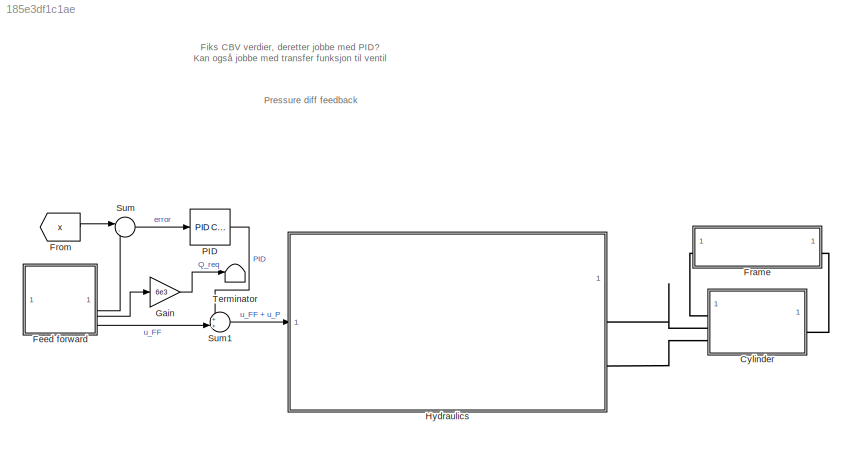
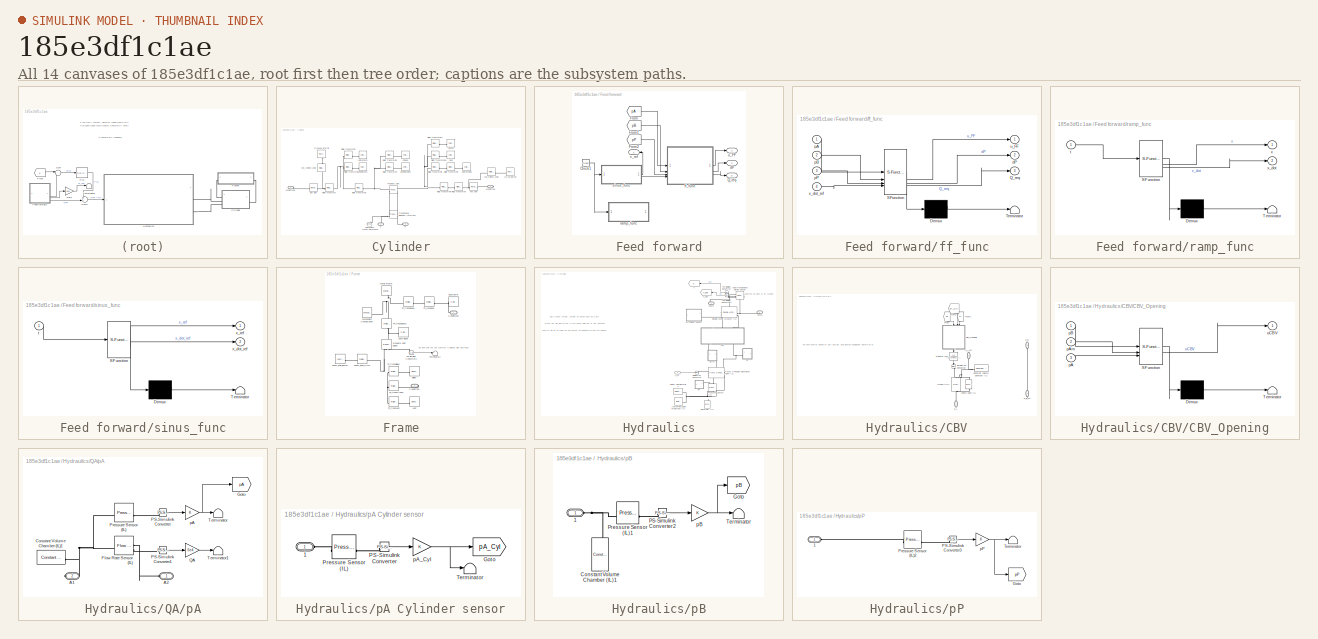
[diagram: thumbnail index - all 14 canvases of the model, root first then tree order]
MODEL slx_185e3df1c1ae
KIND model
CONFIG AbsTol = auto
CONFIG EnableMultiTasking = off
CONFIG FixedStep = auto
CONFIG MaxStep = auto
CONFIG MinStep = auto
CONFIG RelTol = 1e-3
CONFIG SampleTimeConstraint = Unconstrained
CONFIG SolverName = VariableStepAuto
CONFIG StartTime = 0.0
CONFIG StopTime = 40
WORKSPACE source: MATLAB code (in-file)
WORKSPACE code: clear;
WORKSPACE rho = 875
WORKSPACE beta = 1000
WORKSPACE pP = 10e6  (= 10000000)
WORKSPACE dp0 = 20e5  (= 2000000)
WORKSPACE Q0 = 18/6e4  (= 0.0003)
WORKSPACE Cd = 0.55
WORKSPACE AdMax_SI = Q0/(Cd*(2/rho*dp0)^0.5)  (= 8.06738152241e-06)
WORKSPACE AdMax = AdMax_SI*1e6  (= 8.06738152241)
WORKSPACE u_01 = 0.8/7  (= 0.114285714286)
WORKSPACE alpha = 5
WORKSPACE pCr_A = 297.7
WORKSPACE dp_open_A = 150.5
WORKSPACE d = 65
WORKSPACE dr = 35
WORKSPACE A = pi*d^2/4  (= 3318.30724035)
WORKSPACE Ar = pi*dr^2/4  (= 962.112750162)
WORKSPACE Aa = A - Ar  (= 2356.19449019)
WORKSPACE h = 500
WORKSPACE L0 = 272
WORKSPACE dx = 0
WORKSPACE L = h + L0 + dx  (= 772)
WORKSPACE m = 75*4 + 20 + 90  (= 410)
WORKSPACE g = 9.81
WORKSPACE MG = m*g  (= 4022.1)
WORKSPACE x_Init = 50
WORKSPACE Cx = 427
WORKSPACE Cz = -1057
WORKSPACE theta_Init = 73.04- 90  (= -16.96)
WORKSPACE thetaDot_Init = 0
WORKSPACE L1 = 3680
WORKSPACE B1 = 100
WORKSPACE H1 = 150
WORKSPACE t1 = 6
WORKSPACE revBasePinDia = 60
WORKSPACE revBasePinLength = 185.5
WORKSPACE rEar = 35
WORKSPACE tEar = 30
WORKSPACE earToCylTop = 52.45
WORKSPACE earToCylBot = 40.62
WORKSPACE cylDia = 75
WORKSPACE cylLength = 682
WORKSPACE rodLength = 565.26
WORKSPACE rodDia = 35
WORKSPACE rodToCyl = 132
WORKSPACE revCylPinDia = 25
WORKSPACE revCylPinLength = 84
WORKSPACE rPiston = 65/2  (= 32.5)
WORKSPACE tPiston = 40
WORKSPACE abx = 564.99
WORKSPACE aby = 133
WORKSPACE L2 = 210
WORKSPACE B2 = 700
WORKSPACE H2 = 300
WORKSPACE dY_PL_Beam = 75
WORKSPACE beam_mass = 415.740  (= 415.74)
WORKSPACE beam_COM = [3013.15, 61.48, 0.00]
WORKSPACE cyl_house_mass = 10.46699
WORKSPACE cyl_house_COM = [260.99, 0.16, 0.00]
WORKSPACE cyl_rod_mass = 4.81658
WORKSPACE cyl_rod_COM = [-292.43, 0.00, 0.00]
WORKSPACE beam_MOI = [17.5673, 453.1288, 442.0275]
WORKSPACE beam_POI = [13.7279, 0.00000, 0.00000]
WORKSPACE cyl_house_MOI = [0.00969, 0.50582, 0.50623]
WORKSPACE cyl_house_POI = [-0.00039, 0.00000, 0.00000]
WORKSPACE cyl_rod_MOI = [0.00142, 0.20919, 0.20942]
WORKSPACE cyl_rod_POI = [0.00000, 0.00000, 0.00000]
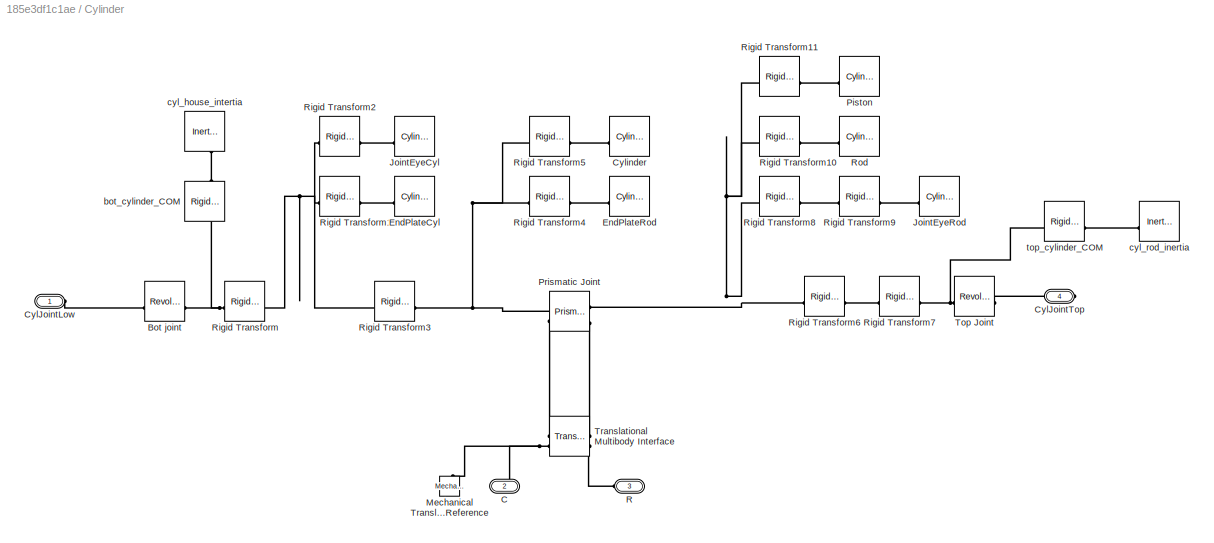
BLOCK [SubSystem] Cylinder
BLOCK [Reference] Cylinder/Bot joint  REF=sm_lib/Joints/Revolute Joint
  SourceBlock = sm_lib/Joints/Revolute Joint
  SourceType = Revolute Joint
BLOCK [PMIOPort] Cylinder/C
  Port = 2
  Side = Left
BLOCK [PMIOPort] Cylinder/CylJointLow
  Side = Left
BLOCK [PMIOPort] Cylinder/CylJointTop
  Port = 4
  Side = Right
BLOCK [Reference] Cylinder/Cylinder  REF=sm_lib/Body Elements/Cylindrical Solid
  SourceBlock = sm_lib/Body Elements/Cylindrical Solid
  SourceType = Cylindrical Solid
BLOCK [Reference] Cylinder/EndPlateCyl  REF=sm_lib/Body Elements/Cylindrical Solid
  Commented = on
  SourceBlock = sm_lib/Body Elements/Cylindrical Solid
  SourceType = Cylindrical Solid
BLOCK [Reference] Cylinder/EndPlateRod  REF=sm_lib/Body Elements/Cylindrical Solid
  Commented = on
  SourceBlock = sm_lib/Body Elements/Cylindrical Solid
  SourceType = Cylindrical Solid
BLOCK [Reference] Cylinder/JointEyeCyl  REF=sm_lib/Body Elements/Cylindrical Solid
  SourceBlock = sm_lib/Body Elements/Cylindrical Solid
  SourceType = Cylindrical Solid
BLOCK [Reference] Cylinder/JointEyeRod  REF=sm_lib/Body Elements/Cylindrical Solid
  SourceBlock = sm_lib/Body Elements/Cylindrical Solid
  SourceType = Cylindrical Solid
BLOCK [Reference] Cylinder/Mechanical Translational Reference  REF=fl_lib/Mechanical/Translational
Elements/Mechanical
Translational
Reference
  NameLocation = right
  SourceBlock = fl_lib/Mechanical/Translational\nElements/Mechanical\nTranslational\nReference
  SourceType = Mechanical\nTranslational\nReference
BLOCK [Reference] Cylinder/Piston  REF=sm_lib/Body Elements/Cylindrical Solid
  SourceBlock = sm_lib/Body Elements/Cylindrical Solid
  SourceType = Cylindrical Solid
BLOCK [Reference] Cylinder/Prismatic Joint  REF=sm_lib/Joints/Prismatic
Joint
  SourceBlock = sm_lib/Joints/Prismatic\nJoint
  SourceType = Prismatic\nJoint
BLOCK [PMIOPort] Cylinder/R
  Port = 3
  Side = Left
BLOCK [Reference] Cylinder/Rigid Transform  REF=sm_lib/Frames and
Transforms/Rigid
Transform
  SourceBlock = sm_lib/Frames and\nTransforms/Rigid\nTransform
  SourceType = Rigid\nTransform
BLOCK [Reference] Cylinder/Rigid Transform1  REF=sm_lib/Frames and
Transforms/Rigid
Transform
  Commented = on
  SourceBlock = sm_lib/Frames and\nTransforms/Rigid\nTransform
  SourceType = Rigid\nTransform
BLOCK [Reference] Cylinder/Rigid Transform10  REF=sm_lib/Frames and
Transforms/Rigid
Transform
  SourceBlock = sm_lib/Frames and\nTransforms/Rigid\nTransform
  SourceType = Rigid\nTransform
BLOCK [Reference] Cylinder/Rigid Transform11  REF=sm_lib/Frames and
Transforms/Rigid
Transform
  SourceBlock = sm_lib/Frames and\nTransforms/Rigid\nTransform
  SourceType = Rigid\nTransform
BLOCK [Reference] Cylinder/Rigid Transform2  REF=sm_lib/Frames and
Transforms/Rigid
Transform
  SourceBlock = sm_lib/Frames and\nTransforms/Rigid\nTransform
  SourceType = Rigid\nTransform
BLOCK [Reference] Cylinder/Rigid Transform3  REF=sm_lib/Frames and
Transforms/Rigid
Transform
  SourceBlock = sm_lib/Frames and\nTransforms/Rigid\nTransform
  SourceType = Rigid\nTransform
BLOCK [Reference] Cylinder/Rigid Transform4  REF=sm_lib/Frames and
Transforms/Rigid
Transform
  Commented = on
  SourceBlock = sm_lib/Frames and\nTransforms/Rigid\nTransform
  SourceType = Rigid\nTransform
BLOCK [Reference] Cylinder/Rigid Transform5  REF=sm_lib/Frames and
Transforms/Rigid
Transform
  SourceBlock = sm_lib/Frames and\nTransforms/Rigid\nTransform
  SourceType = Rigid\nTransform
BLOCK [Reference] Cylinder/Rigid Transform6  REF=sm_lib/Frames and
Transforms/Rigid
Transform
  SourceBlock = sm_lib/Frames and\nTransforms/Rigid\nTransform
  SourceType = Rigid\nTransform
BLOCK [Reference] Cylinder/Rigid Transform7  REF=sm_lib/Frames and
Transforms/Rigid
Transform
  SourceBlock = sm_lib/Frames and\nTransforms/Rigid\nTransform
  SourceType = Rigid\nTransform
BLOCK [Reference] Cylinder/Rigid Transform8  REF=sm_lib/Frames and
Transforms/Rigid
Transform
  SourceBlock = sm_lib/Frames and\nTransforms/Rigid\nTransform
  SourceType = Rigid\nTransform
BLOCK [Reference] Cylinder/Rigid Transform9  REF=sm_lib/Frames and
Transforms/Rigid
Transform
  SourceBlock = sm_lib/Frames and\nTransforms/Rigid\nTransform
  SourceType = Rigid\nTransform
BLOCK [Reference] Cylinder/Rod  REF=sm_lib/Body Elements/Cylindrical Solid
  SourceBlock = sm_lib/Body Elements/Cylindrical Solid
  SourceType = Cylindrical Solid
BLOCK [Reference] Cylinder/Top Joint  REF=sm_lib/Joints/Revolute Joint
  SourceBlock = sm_lib/Joints/Revolute Joint
  SourceType = Revolute Joint
BLOCK [Reference] Cylinder/Translational Multibody Interface  REF=fl_lib/Mechanical/Multibody Interfaces/Translational
Multibody Interface
  SourceBlock = fl_lib/Mechanical/Multibody Interfaces/Translational\nMultibody Interface
  SourceType = Translational\nMultibody Interface
BLOCK [Reference] Cylinder/bot_cylinder_COM  REF=sm_lib/Frames and
Transforms/Rigid
Transform
  NameLocation = left
  SourceBlock = sm_lib/Frames and\nTransforms/Rigid\nTransform
  SourceType = Rigid\nTransform
BLOCK [Reference] Cylinder/cyl_house_intertia  REF=sm_lib/Body Elements/Inertia
  NameLocation = left
  SourceBlock = sm_lib/Body Elements/Inertia
  SourceType = Inertia
BLOCK [Reference] Cylinder/cyl_rod_inertia  REF=sm_lib/Body Elements/Inertia
  NameLocation = top
  SourceBlock = sm_lib/Body Elements/Inertia
  SourceType = Inertia
BLOCK [Reference] Cylinder/top_cylinder_COM  REF=sm_lib/Frames and
Transforms/Rigid
Transform
  SourceBlock = sm_lib/Frames and\nTransforms/Rigid\nTransform
  SourceType = Rigid\nTransform
BLOCK [SubSystem] Feed forward
BLOCK [Clock] Feed forward/Clock1
BLOCK [From] Feed forward/From
  GotoTag = pA
  TagVisibility = global
BLOCK [From] Feed forward/From1
  GotoTag = pB
  TagVisibility = global
BLOCK [From] Feed forward/From2
  GotoTag = pP
  TagVisibility = global
BLOCK [Outport] Feed forward/Q_req
  Port = 3
BLOCK [Outport] Feed forward/dP
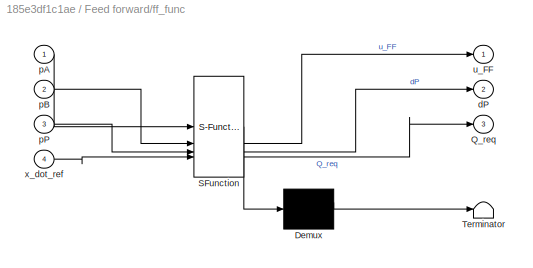
BLOCK [SubSystem] Feed forward/ff_func
  ErrorFcn = Stateflow.Translate.translate
  PermitHierarchicalResolution = ExplicitOnly
  SFBlockType = MATLAB Function
  TreatAsAtomicUnit = on
BLOCK [Demux] Feed forward/ff_func/ Demux 
  Outputs = 1
BLOCK [S-Function] Feed forward/ff_func/ SFunction 
  EnableBusSupport = off
  FunctionName = sf_sfun
  Parameters = A,Aa,Q0,dp0,u_01
  PortCounts = [4 4]
  SFcnIsStateOwnerBlock = off
  SFunctionDeploymentMode = off
  Tag = Stateflow S-Function 3
BLOCK [Terminator] Feed forward/ff_func/ Terminator 
BLOCK [Outport] Feed forward/ff_func/Q_req
  Port = 3
BLOCK [Outport] Feed forward/ff_func/dP
  Port = 2
BLOCK [Inport] Feed forward/ff_func/pA
BLOCK [Inport] Feed forward/ff_func/pB
  Port = 2
BLOCK [Inport] Feed forward/ff_func/pP
  Port = 3
BLOCK [Outport] Feed forward/ff_func/u_FF
BLOCK [Inport] Feed forward/ff_func/x_dot_ref
  Port = 4
BLOCK [SubSystem] Feed forward/ramp_func
  Commented = on
  ErrorFcn = Stateflow.Translate.translate
  PermitHierarchicalResolution = ExplicitOnly
  SFBlockType = MATLAB Function
  TreatAsAtomicUnit = on
BLOCK [Demux] Feed forward/ramp_func/ Demux 
  Outputs = 1
BLOCK [S-Function] Feed forward/ramp_func/ SFunction 
  EnableBusSupport = off
  FunctionName = sf_sfun
  PortCounts = [1 3]
  SFcnIsStateOwnerBlock = off
  SFunctionDeploymentMode = off
  Tag = Stateflow S-Function 4
BLOCK [Terminator] Feed forward/ramp_func/ Terminator 
BLOCK [Inport] Feed forward/ramp_func/t
BLOCK [Outport] Feed forward/ramp_func/x
BLOCK [Outport] Feed forward/ramp_func/x_dot
  Port = 2
BLOCK [SubSystem] Feed forward/sinus_func
  ErrorFcn = Stateflow.Translate.translate
  PermitHierarchicalResolution = ExplicitOnly
  SFBlockType = MATLAB Function
  TreatAsAtomicUnit = on
BLOCK [Demux] Feed forward/sinus_func/ Demux 
  Outputs = 1
BLOCK [S-Function] Feed forward/sinus_func/ SFunction 
  EnableBusSupport = off
  FunctionName = sf_sfun
  PortCounts = [1 3]
  SFcnIsStateOwnerBlock = off
  SFunctionDeploymentMode = off
  Tag = Stateflow S-Function 2
BLOCK [Terminator] Feed forward/sinus_func/ Terminator 
BLOCK [Inport] Feed forward/sinus_func/t
BLOCK [Outport] Feed forward/sinus_func/x_dot_ref
  Port = 2
BLOCK [Outport] Feed forward/sinus_func/x_ref
BLOCK [Outport] Feed forward/u_FF
  Port = 4
BLOCK [Outport] Feed forward/x_ref
  Port = 2
BLOCK [SubSystem] Frame
BLOCK [Reference] Frame/Bjelke  REF=sm_lib/Body Elements/Brick Solid
  SourceBlock = sm_lib/Body Elements/Brick Solid
  SourceType = Brick Solid
BLOCK [PMIOPort] Frame/CylJointLow
  Side = Left
BLOCK [PMIOPort] Frame/CylJointTop
  Port = 2
  Side = Right
BLOCK [Reference] Frame/Last  REF=sm_lib/Body Elements/Brick Solid
  SourceBlock = sm_lib/Body Elements/Brick Solid
  SourceType = Brick Solid
BLOCK [Reference] Frame/Mechanism Configuration  REF=sm_lib/Utilities/Mechanism
Configuration
  SourceBlock = sm_lib/Utilities/Mechanism\nConfiguration
  SourceType = Mechanism\nConfiguration
BLOCK [Reference] Frame/PS-Simulink Converter2  REF=nesl_utility/PS-Simulink
Converter
  SourceBlock = nesl_utility/PS-Simulink\nConverter
  SourceType = PS-Simulink\nConverter
BLOCK [Reference] Frame/Revolute Joint global  REF=sm_lib/Joints/Revolute Joint
  NameLocation = left
  SourceBlock = sm_lib/Joints/Revolute Joint
  SourceType = Revolute Joint
BLOCK [Reference] Frame/TF_rotBaseL  REF=sm_lib/Frames and
Transforms/Rigid
Transform
  SourceBlock = sm_lib/Frames and\nTransforms/Rigid\nTransform
  SourceType = Rigid\nTransform
BLOCK [Reference] Frame/TF_transBaseG  REF=sm_lib/Frames and
Transforms/Rigid
Transform
  NameLocation = left
  SourceBlock = sm_lib/Frames and\nTransforms/Rigid\nTransform
  SourceType = Rigid\nTransform
BLOCK [Reference] Frame/TF_transBaseL  REF=sm_lib/Frames and
Transforms/Rigid
Transform
  SourceBlock = sm_lib/Frames and\nTransforms/Rigid\nTransform
  SourceType = Rigid\nTransform
BLOCK [Reference] Frame/TF_transBjelke  REF=sm_lib/Frames and
Transforms/Rigid
Transform
  SourceBlock = sm_lib/Frames and\nTransforms/Rigid\nTransform
  SourceType = Rigid\nTransform
BLOCK [Reference] Frame/TF_transCylTop  REF=sm_lib/Frames and
Transforms/Rigid
Transform
  SourceBlock = sm_lib/Frames and\nTransforms/Rigid\nTransform
  SourceType = Rigid\nTransform
BLOCK [Reference] Frame/TF_transLast  REF=sm_lib/Frames and
Transforms/Rigid
Transform
  SourceBlock = sm_lib/Frames and\nTransforms/Rigid\nTransform
  SourceType = Rigid\nTransform
BLOCK [Terminator] Frame/Terminator2
BLOCK [Reference] Frame/World Frame  REF=sm_lib/Frames and
Transforms/World Frame
  NameLocation = left
  SourceBlock = sm_lib/Frames and\nTransforms/World Frame
  SourceType = World Frame
BLOCK [Reference] Frame/base global  REF=sm_lib/Body Elements/Cylindrical Solid
  SourceBlock = sm_lib/Body Elements/Cylindrical Solid
  SourceType = Cylindrical Solid
BLOCK [Reference] Frame/base lower  REF=sm_lib/Body Elements/Cylindrical Solid
  SourceBlock = sm_lib/Body Elements/Cylindrical Solid
  SourceType = Cylindrical Solid
BLOCK [Reference] Frame/beam_load_COM  REF=sm_lib/Frames and
Transforms/Rigid
Transform
  SourceBlock = sm_lib/Frames and\nTransforms/Rigid\nTransform
  SourceType = Rigid\nTransform
BLOCK [Reference] Frame/beam_load_inertia  REF=sm_lib/Body Elements/Inertia
  SourceBlock = sm_lib/Body Elements/Inertia
  SourceType = Inertia
BLOCK [From] From
  GotoTag = x
  TagVisibility = global
BLOCK [Gain] Gain
  Gain = 6e3
BLOCK [SubSystem] Hydraulics
BLOCK [Reference] Hydraulics/4-Way 3-Position Directional Valve (IL)  REF=SimscapeFluids_lib/Isothermal Liquid/Valves & Orifices/Directional Control
Valves/4-Way 3-Position
Directional Valve
(IL)
  SourceBlock = SimscapeFluids_lib/Isothermal Liquid/Valves & Orifices/Directional Control\nValves/4-Way 3-Position\nDirectional Valve\n(IL)
  SourceType = 4-Way 3-Position\nDirectional Valve\n(IL)
BLOCK [SubSystem] Hydraulics/CBV
BLOCK [SubSystem] Hydraulics/CBV/CBV_Opening
  ErrorFcn = Stateflow.Translate.translate
  NameLocation = right
  PermitHierarchicalResolution = ExplicitOnly
  SFBlockType = MATLAB Function
  TreatAsAtomicUnit = on
BLOCK [Demux] Hydraulics/CBV/CBV_Opening/ Demux 
  Outputs = 1
BLOCK [S-Function] Hydraulics/CBV/CBV_Opening/ SFunction 
  EnableBusSupport = off
  FunctionName = sf_sfun
  Parameters = alpha,dp_open_A,pCr_A
  PortCounts = [3 2]
  SFcnIsStateOwnerBlock = off
  SFunctionDeploymentMode = off
  Tag = Stateflow S-Function 1
BLOCK [Terminator] Hydraulics/CBV/CBV_Opening/ Terminator 
BLOCK [Inport] Hydraulics/CBV/CBV_Opening/pA
  Port = 3
BLOCK [Inport] Hydraulics/CBV/CBV_Opening/pAm
  Port = 2
BLOCK [Inport] Hydraulics/CBV/CBV_Opening/pB
BLOCK [Outport] Hydraulics/CBV/CBV_Opening/uCBV
BLOCK [Reference] Hydraulics/CBV/Check Valve (IL)  REF=SimscapeFluids_lib/Isothermal Liquid/Valves & Orifices/Directional Control
Valves/Check Valve (IL)
  NameLocation = right
  SourceBlock = SimscapeFluids_lib/Isothermal Liquid/Valves & Orifices/Directional Control\nValves/Check Valve (IL)
  SourceType = Check Valve (IL)
BLOCK [Reference] Hydraulics/CBV/Constant Volume Chamber (IL)  REF=fl_lib/Isothermal Liquid/Elements/Constant Volume
Chamber (IL)
  SourceBlock = fl_lib/Isothermal Liquid/Elements/Constant Volume\nChamber (IL)
  SourceType = Constant Volume\nChamber (IL)
BLOCK [From] Hydraulics/CBV/From
  GotoTag = pB
  NameLocation = left
  TagVisibility = global
BLOCK [From] Hydraulics/CBV/From1
  GotoTag = pA
  NameLocation = left
  TagVisibility = global
BLOCK [From] Hydraulics/CBV/From2
  GotoTag = pA_Cyl
  NameLocation = left
  TagVisibility = global
BLOCK [Reference] Hydraulics/CBV/Orifice (IL)1  REF=SimscapeFluids_lib/Isothermal Liquid/Valves & Orifices/Orifices/Orifice (IL)
  NameLocation = left
  SourceBlock = SimscapeFluids_lib/Isothermal Liquid/Valves & Orifices/Orifices/Orifice (IL)
  SourceType = Orifice (IL)
BLOCK [Reference] Hydraulics/CBV/Simulink-PS Converter  REF=nesl_utility/Simulink-PS
Converter
  NameLocation = left
  SourceBlock = nesl_utility/Simulink-PS\nConverter
  SourceType = Simulink-PS\nConverter
BLOCK [TransferFcn] Hydraulics/CBV/Transfer Fcn
  Denominator = [1/(2*pi*0.5) 1]
  NameLocation = left
BLOCK [PMIOPort] Hydraulics/CBV/p_A
  NameLocation = right
  Side = Left
BLOCK [PMIOPort] Hydraulics/CBV/p_A_Cyl
  NameLocation = right
  Port = 3
  Side = Right
BLOCK [PMIOPort] Hydraulics/CBV/p_B
  NameLocation = left
  Port = 2
  Side = Left
BLOCK [PMIOPort] Hydraulics/CBV/p_B_Cyl
  NameLocation = right
  Port = 4
  Side = Right
BLOCK [PMIOPort] Hydraulics/Conn1
  Side = Right
BLOCK [PMIOPort] Hydraulics/Conn3
  Port = 2
  Side = Right
BLOCK [Reference] Hydraulics/Double-Acting Actuator (IL)  REF=SimscapeFluids_lib/Isothermal Liquid/Actuators/Double-Acting
Actuator (IL)
  SourceBlock = SimscapeFluids_lib/Isothermal Liquid/Actuators/Double-Acting\nActuator (IL)
  SourceType = Double-Acting\nActuator (IL)
BLOCK [Reference] Hydraulics/Ideal Translational Motion Sensor  REF=fl_lib/Mechanical/Mechanical Sensors/Ideal Translational
Motion Sensor
  NameLocation = top
  SourceBlock = fl_lib/Mechanical/Mechanical Sensors/Ideal Translational\nMotion Sensor
  SourceType = Ideal Translational\nMotion Sensor
BLOCK [Reference] Hydraulics/Isothermal Liquid Properties (IL)  REF=fl_lib/Isothermal Liquid/Utilities/Isothermal Liquid
Properties (IL)
  SourceBlock = fl_lib/Isothermal Liquid/Utilities/Isothermal Liquid\nProperties (IL)
  SourceType = Isothermal Liquid\nProperties (IL)
BLOCK [Reference] Hydraulics/PS-Simulink Converter  REF=nesl_utility/PS-Simulink
Converter
  NameLocation = top
  SourceBlock = nesl_utility/PS-Simulink\nConverter
  SourceType = PS-Simulink\nConverter
BLOCK [Reference] Hydraulics/PS-Simulink Converter1  REF=nesl_utility/PS-Simulink
Converter
  NameLocation = top
  SourceBlock = nesl_utility/PS-Simulink\nConverter
  SourceType = PS-Simulink\nConverter
BLOCK [Reference] Hydraulics/Pressure Source (IL)  REF=fl_lib/Isothermal Liquid/Sources/Pressure Source (IL)
  NameLocation = right
  SourceBlock = fl_lib/Isothermal Liquid/Sources/Pressure Source (IL)
  SourceType = Pressure Source (IL)
BLOCK [SubSystem] Hydraulics/QA//pA
  PortSchema = {"entries":[{"content":{"sides":[{"content":{},"type":"ConnectorPlacement.EquallySpacedRectSide","uuid":"528edc0f-4a4d-4637-aeac-ce7d4705c794"},{"content":{"side":"RIGHT"},"type":"ConnectorPlacement.EquallySpacedRectSide","uuid":"1212f0bf-cd1d-49c9-8d64-2c2fa0f26d5e"},{"content":{"connectorIds":["LConn1"],"side":"TOP"},"type":"ConnectorPlacement.EquallySpacedRectSide","uuid":"19f63e16-fedb-4531-94...<+354ch>
BLOCK [PMIOPort] Hydraulics/QA//pA/A1
  Port = 2
  Side = Right
BLOCK [PMIOPort] Hydraulics/QA//pA/A2
  Side = Left
BLOCK [Reference] Hydraulics/QA//pA/Constant Volume Chamber (IL)1  REF=fl_lib/Isothermal Liquid/Elements/Constant Volume
Chamber (IL)
  SourceBlock = fl_lib/Isothermal Liquid/Elements/Constant Volume\nChamber (IL)
  SourceType = Constant Volume\nChamber (IL)
BLOCK [Reference] Hydraulics/QA//pA/Flow Rate Sensor (IL)  REF=fl_lib/Isothermal Liquid/Sensors/Flow Rate Sensor
(IL)
  SourceBlock = fl_lib/Isothermal Liquid/Sensors/Flow Rate Sensor\n(IL)
  SourceType = Flow Rate Sensor\n(IL)
BLOCK [Goto] Hydraulics/QA//pA/Goto
  GotoTag = pA
  TagVisibility = global
BLOCK [Reference] Hydraulics/QA//pA/PS-Simulink Converter  REF=nesl_utility/PS-Simulink
Converter
  SourceBlock = nesl_utility/PS-Simulink\nConverter
  SourceType = PS-Simulink\nConverter
BLOCK [Reference] Hydraulics/QA//pA/PS-Simulink Converter1  REF=nesl_utility/PS-Simulink
Converter
  SourceBlock = nesl_utility/PS-Simulink\nConverter
  SourceType = PS-Simulink\nConverter
BLOCK [Reference] Hydraulics/QA//pA/Pressure Sensor (IL)  REF=fl_lib/Isothermal Liquid/Sensors/Pressure Sensor (IL)
  SourceBlock = fl_lib/Isothermal Liquid/Sensors/Pressure Sensor (IL)
  SourceType = Pressure Sensor (IL)
BLOCK [Gain] Hydraulics/QA//pA/QA
  Gain = 6e4
BLOCK [Terminator] Hydraulics/QA//pA/Terminator
BLOCK [Terminator] Hydraulics/QA//pA/Terminator1
BLOCK [Gain] Hydraulics/QA//pA/pA
BLOCK [Reference] Hydraulics/Reservoir (IL)  REF=fl_lib/Isothermal Liquid/Elements/Reservoir (IL)
  NameLocation = right
  SourceBlock = fl_lib/Isothermal Liquid/Elements/Reservoir (IL)
  SourceType = Reservoir (IL)
BLOCK [Reference] Hydraulics/Simulink-PS Converter  REF=nesl_utility/Simulink-PS
Converter
  SourceBlock = nesl_utility/Simulink-PS\nConverter
  SourceType = Simulink-PS\nConverter
BLOCK [Reference] Hydraulics/Solver Configuration  REF=nesl_utility/Solver
Configuration
  SourceBlock = nesl_utility/Solver\nConfiguration
  SourceType = Solver\nConfiguration
BLOCK [Inport] Hydraulics/U_FF
BLOCK [SubSystem] Hydraulics/pA Cylinder sensor
BLOCK [PMIOPort] Hydraulics/pA Cylinder sensor/1
  Side = Left
BLOCK [Goto] Hydraulics/pA Cylinder sensor/Goto
  GotoTag = pA_Cyl
  TagVisibility = global
BLOCK [Reference] Hydraulics/pA Cylinder sensor/PS-Simulink Converter  REF=nesl_utility/PS-Simulink
Converter
  SourceBlock = nesl_utility/PS-Simulink\nConverter
  SourceType = PS-Simulink\nConverter
BLOCK [Reference] Hydraulics/pA Cylinder sensor/Pressure Sensor (IL)  REF=fl_lib/Isothermal Liquid/Sensors/Pressure Sensor (IL)
  SourceBlock = fl_lib/Isothermal Liquid/Sensors/Pressure Sensor (IL)
  SourceType = Pressure Sensor (IL)
BLOCK [Terminator] Hydraulics/pA Cylinder sensor/Terminator
BLOCK [Gain] Hydraulics/pA Cylinder sensor/pA_Cyl
BLOCK [SubSystem] Hydraulics/pB
BLOCK [PMIOPort] Hydraulics/pB/1
  Side = Left
BLOCK [Reference] Hydraulics/pB/Constant Volume Chamber (IL)1  REF=fl_lib/Isothermal Liquid/Elements/Constant Volume
Chamber (IL)
  NameLocation = right
  SourceBlock = fl_lib/Isothermal Liquid/Elements/Constant Volume\nChamber (IL)
  SourceType = Constant Volume\nChamber (IL)
BLOCK [Goto] Hydraulics/pB/Goto
  GotoTag = pB
  TagVisibility = global
BLOCK [Reference] Hydraulics/pB/PS-Simulink Converter2  REF=nesl_utility/PS-Simulink
Converter
  SourceBlock = nesl_utility/PS-Simulink\nConverter
  SourceType = PS-Simulink\nConverter
BLOCK [Reference] Hydraulics/pB/Pressure Sensor (IL)1  REF=fl_lib/Isothermal Liquid/Sensors/Pressure Sensor (IL)
  SourceBlock = fl_lib/Isothermal Liquid/Sensors/Pressure Sensor (IL)
  SourceType = Pressure Sensor (IL)
BLOCK [Terminator] Hydraulics/pB/Terminator
BLOCK [Gain] Hydraulics/pB/pB
BLOCK [SubSystem] Hydraulics/pP
BLOCK [PMIOPort] Hydraulics/pP/1
  Side = Left
BLOCK [Goto] Hydraulics/pP/Goto
  GotoTag = pP
  TagVisibility = global
BLOCK [Reference] Hydraulics/pP/PS-Simulink Converter3  REF=nesl_utility/PS-Simulink
Converter
  SourceBlock = nesl_utility/PS-Simulink\nConverter
  SourceType = PS-Simulink\nConverter
BLOCK [Reference] Hydraulics/pP/Pressure Sensor (IL)2  REF=fl_lib/Isothermal Liquid/Sensors/Pressure Sensor (IL)
  SourceBlock = fl_lib/Isothermal Liquid/Sensors/Pressure Sensor (IL)
  SourceType = Pressure Sensor (IL)
BLOCK [Terminator] Hydraulics/pP/Terminator
BLOCK [Gain] Hydraulics/pP/pP
BLOCK [Goto] Hydraulics/x
  GotoTag = x
  TagVisibility = global
BLOCK [Goto] Hydraulics/x_dot
  GotoTag = x_dot
  TagVisibility = global
BLOCK [Reference] PID  REF=slpidlib/PID Controller
  LibrarySourceBlock = simulink/Continuous/PID Controller
  SourceBlock = slpidlib/PID Controller
  SourceType = PID 1dof
BLOCK [Sum] Sum
  Inputs = |-+
BLOCK [Sum] Sum1
  Inputs = ++|
BLOCK [Terminator] Terminator
ANNOTATION (root): Fiks CBV verdier, deretter jobbe med PID? Kan også jobbe med transfer funksjon til ventil
ANNOTATION (root): Pressure diff feedback
ANNOTATION Frame: Vet ikke helt om det kommer i radianer eller deg enda
ANNOTATION Hydraulics: 18 liter per min med 20 bar trykkfroskell, mulig det er mer nøyaktig
ANNOTATION Hydraulics: CBV trenger verdier, estimat på deltaP open og crack
ANNOTATION Hydraulics: Hvorfor ble alt så smud når jeg dunket på dødbånd og den nye CBV'en?
ANNOTATION Hydraulics: Initial pos på disse er litt snodig?
ANNOTATION Hydraulics/CBV: Vet ikke hvorfor denne er satt opp slik. Skal dempe oscilasjoner høyere en pi
NET Feed forward/Clock1:1 -> Feed forward/ramp_func:1, Feed forward/sinus_func:1
LINE Feed forward/From1:1 -> Feed forward/ff_func:2
LINE Feed forward/From2:1 -> Feed forward/ff_func:3
LINE Feed forward/From:1 -> Feed forward/ff_func:1
LINE Feed forward/ff_func:1 -> Feed forward/u_FF:1
LINE Feed forward/ff_func:2 -> Feed forward/dP:1
LINE Feed forward/ff_func:3 -> Feed forward/Q_req:1
LINE Feed forward/sinus_func:1 -> Feed forward/x_ref:1
LINE Feed forward/sinus_func:2 -> Feed forward/ff_func:4
LINE Feed forward:2 -> Sum:2
LINE Feed forward:3 -> Gain:1
LINE Feed forward:4 -> Sum1:2
LINE Frame/PS-Simulink Converter2:1 -> Frame/Terminator2:1
LINE From:1 -> Sum:1
LINE Gain:1 -> Terminator:1
LINE Hydraulics/CBV/CBV_Opening:1 -> Hydraulics/CBV/Transfer Fcn:1
LINE Hydraulics/CBV/From1:1 -> Hydraulics/CBV/CBV_Opening:3
LINE Hydraulics/CBV/From2:1 -> Hydraulics/CBV/CBV_Opening:2
LINE Hydraulics/CBV/From:1 -> Hydraulics/CBV/CBV_Opening:1
LINE Hydraulics/CBV/Transfer Fcn:1 -> Hydraulics/CBV/Simulink-PS Converter:1
LINE Hydraulics/PS-Simulink Converter1:1 -> Hydraulics/x_dot:1
LINE Hydraulics/PS-Simulink Converter:1 -> Hydraulics/x:1
LINE Hydraulics/QA//pA/PS-Simulink Converter1:1 -> Hydraulics/QA//pA/QA:1
LINE Hydraulics/QA//pA/PS-Simulink Converter:1 -> Hydraulics/QA//pA/pA:1
LINE Hydraulics/QA//pA/QA:1 -> Hydraulics/QA//pA/Terminator1:1
NET Hydraulics/QA//pA/pA:1 -> Hydraulics/QA//pA/Goto:1, Hydraulics/QA//pA/Terminator:1
LINE Hydraulics/U_FF:1 -> Hydraulics/Simulink-PS Converter:1
LINE Hydraulics/pA Cylinder sensor/PS-Simulink Converter:1 -> Hydraulics/pA Cylinder sensor/pA_Cyl:1
NET Hydraulics/pA Cylinder sensor/pA_Cyl:1 -> Hydraulics/pA Cylinder sensor/Goto:1, Hydraulics/pA Cylinder sensor/Terminator:1
LINE Hydraulics/pB/PS-Simulink Converter2:1 -> Hydraulics/pB/pB:1
NET Hydraulics/pB/pB:1 -> Hydraulics/pB/Goto:1, Hydraulics/pB/Terminator:1
LINE Hydraulics/pP/PS-Simulink Converter3:1 -> Hydraulics/pP/pP:1
NET Hydraulics/pP/pP:1 -> Hydraulics/pP/Goto:1, Hydraulics/pP/Terminator:1
LINE PID:1 -> Sum1:1
LINE Sum1:1 -> Hydraulics:1
LINE Sum:1 -> PID:1
PLINE Cylinder/Bot joint:LConn1 -- Cylinder/CylJointLow:RConn1
PNET net1: Cylinder/Bot joint:RConn1 -- Cylinder/Rigid Transform:LConn1 -- Cylinder/bot_cylinder_COM:LConn1
PNET net2: Cylinder/C:RConn1 -- Cylinder/Mechanical Translational Reference:LConn1 -- Cylinder/Translational Multibody Interface:LConn2
PLINE Cylinder/CylJointTop:RConn1 -- Cylinder/Top Joint:RConn1
PLINE Cylinder/Cylinder:RConn1 -- Cylinder/Rigid Transform5:RConn1
PLINE Cylinder/EndPlateCyl:RConn1 -- Cylinder/Rigid Transform1:RConn1
PLINE Cylinder/EndPlateRod:RConn1 -- Cylinder/Rigid Transform4:RConn1
PLINE Cylinder/JointEyeCyl:RConn1 -- Cylinder/Rigid Transform2:RConn1
PLINE Cylinder/JointEyeRod:RConn1 -- Cylinder/Rigid Transform9:RConn1
PLINE Cylinder/Piston:RConn1 -- Cylinder/Rigid Transform11:RConn1
PNET net3: Cylinder/Prismatic Joint:LConn1 -- Cylinder/Rigid Transform3:RConn1 -- Cylinder/Rigid Transform4:LConn1 -- Cylinder/Rigid Transform5:LConn1
PLINE Cylinder/Prismatic Joint:LConn2 -- Cylinder/Translational Multibody Interface:LConn1
PNET net4: Cylinder/Prismatic Joint:RConn1 -- Cylinder/Rigid Transform10:LConn1 -- Cylinder/Rigid Transform11:LConn1 -- Cylinder/Rigid Transform6:LConn1 -- Cylinder/Rigid Transform8:LConn1
PLINE Cylinder/Prismatic Joint:RConn3 -- Cylinder/Translational Multibody Interface:RConn1
PLINE Cylinder/R:RConn1 -- Cylinder/Translational Multibody Interface:RConn2
PLINE Cylinder/Rigid Transform10:RConn1 -- Cylinder/Rod:RConn1
PNET net5: Cylinder/Rigid Transform1:LConn1 -- Cylinder/Rigid Transform2:LConn1 -- Cylinder/Rigid Transform3:LConn1 -- Cylinder/Rigid Transform:RConn1
PLINE Cylinder/Rigid Transform6:RConn1 -- Cylinder/Rigid Transform7:LConn1
PNET net6: Cylinder/Rigid Transform7:RConn1 -- Cylinder/Top Joint:LConn1 -- Cylinder/top_cylinder_COM:LConn1
PLINE Cylinder/Rigid Transform8:RConn1 -- Cylinder/Rigid Transform9:LConn1
PLINE Cylinder/bot_cylinder_COM:RConn1 -- Cylinder/cyl_house_intertia:RConn1
PLINE Cylinder/cyl_rod_inertia:RConn1 -- Cylinder/top_cylinder_COM:RConn1
PLINE Cylinder:LConn1 -- Frame:LConn1
PLINE Cylinder:LConn2 -- Hydraulics:RConn1
PLINE Cylinder:LConn3 -- Hydraulics:RConn2
PLINE Cylinder:RConn1 -- Frame:RConn1
PLINE Frame/Bjelke:RConn1 -- Frame/TF_transBjelke:RConn1
PNET net7: Frame/CylJointLow:RConn1 -- Frame/TF_rotBaseL:RConn1 -- Frame/base lower:RConn1
PLINE Frame/CylJointTop:RConn1 -- Frame/TF_transCylTop:RConn1
PLINE Frame/Last:RConn1 -- Frame/TF_transLast:RConn1
PNET net8: Frame/Mechanism Configuration:RConn1 -- Frame/TF_transBaseG:LConn1 -- Frame/TF_transBaseL:LConn1 -- Frame/World Frame:RConn1
PLINE Frame/PS-Simulink Converter2:LConn1 -- Frame/Revolute Joint global:RConn2
PNET net9: Frame/Revolute Joint global:LConn1 -- Frame/TF_transBaseG:RConn1 -- Frame/base global:RConn1
PNET net10: Frame/Revolute Joint global:RConn1 -- Frame/TF_transBjelke:LConn1 -- Frame/TF_transCylTop:LConn1 -- Frame/TF_transLast:LConn1 -- Frame/beam_load_COM:LConn1
PLINE Frame/TF_rotBaseL:LConn1 -- Frame/TF_transBaseL:RConn1
PLINE Frame/beam_load_COM:RConn1 -- Frame/beam_load_inertia:RConn1
PLINE Hydraulics/4-Way 3-Position Directional Valve (IL):LConn1 -- Hydraulics/Simulink-PS Converter:RConn1
PLINE Hydraulics/4-Way 3-Position Directional Valve (IL):LConn2 -- Hydraulics/QA//pA:RConn1
PNET net11: Hydraulics/4-Way 3-Position Directional Valve (IL):LConn3 -- Hydraulics/CBV:LConn2 -- Hydraulics/pB:LConn1
PNET net12: Hydraulics/4-Way 3-Position Directional Valve (IL):RConn1 -- Hydraulics/Pressure Source (IL):RConn1 -- Hydraulics/pP:LConn1
PNET net13: Hydraulics/4-Way 3-Position Directional Valve (IL):RConn2 -- Hydraulics/Isothermal Liquid Properties (IL):RConn1 -- Hydraulics/Pressure Source (IL):LConn1 -- Hydraulics/Reservoir (IL):LConn1 -- Hydraulics/Solver Configuration:RConn1
PNET net14: Hydraulics/CBV/Check Valve (IL):LConn1 -- Hydraulics/CBV/Orifice (IL)1:RConn1 -- Hydraulics/CBV/p_A:RConn1
PNET net15: Hydraulics/CBV/Check Valve (IL):RConn1 -- Hydraulics/CBV/Constant Volume Chamber (IL):LConn1 -- Hydraulics/CBV/Orifice (IL)1:LConn1 -- Hydraulics/CBV/p_A_Cyl:RConn1
PLINE Hydraulics/CBV/Orifice (IL)1:LConn2 -- Hydraulics/CBV/Simulink-PS Converter:RConn1
PLINE Hydraulics/CBV/p_B:RConn1 -- Hydraulics/CBV/p_B_Cyl:RConn1
PLINE Hydraulics/CBV:LConn1 -- Hydraulics/QA//pA:LConn1
PNET net16: Hydraulics/CBV:RConn1 -- Hydraulics/Double-Acting Actuator (IL):LConn2 -- Hydraulics/pA Cylinder sensor:LConn1
PLINE Hydraulics/CBV:RConn2 -- Hydraulics/Double-Acting Actuator (IL):RConn3
PNET net17: Hydraulics/Conn1:RConn1 -- Hydraulics/Double-Acting Actuator (IL):LConn1 -- Hydraulics/Ideal Translational Motion Sensor:RConn1
PNET net18: Hydraulics/Conn3:RConn1 -- Hydraulics/Double-Acting Actuator (IL):RConn2 -- Hydraulics/Ideal Translational Motion Sensor:LConn1
PLINE Hydraulics/Ideal Translational Motion Sensor:RConn2 -- Hydraulics/PS-Simulink Converter1:LConn1
PLINE Hydraulics/Ideal Translational Motion Sensor:RConn3 -- Hydraulics/PS-Simulink Converter:LConn1
PNET net19: Hydraulics/QA//pA/A1:RConn1 -- Hydraulics/QA//pA/Constant Volume Chamber (IL)1:LConn1 -- Hydraulics/QA//pA/Flow Rate Sensor (IL):LConn1 -- Hydraulics/QA//pA/Pressure Sensor (IL):LConn1
PLINE Hydraulics/QA//pA/A2:RConn1 -- Hydraulics/QA//pA/Flow Rate Sensor (IL):RConn1
PLINE Hydraulics/QA//pA/Flow Rate Sensor (IL):RConn2 -- Hydraulics/QA//pA/PS-Simulink Converter1:LConn1
PLINE Hydraulics/QA//pA/PS-Simulink Converter:LConn1 -- Hydraulics/QA//pA/Pressure Sensor (IL):RConn1
PLINE Hydraulics/pA Cylinder sensor/1:RConn1 -- Hydraulics/pA Cylinder sensor/Pressure Sensor (IL):LConn1
PLINE Hydraulics/pA Cylinder sensor/PS-Simulink Converter:LConn1 -- Hydraulics/pA Cylinder sensor/Pressure Sensor (IL):RConn1
PNET net20: Hydraulics/pB/1:RConn1 -- Hydraulics/pB/Constant Volume Chamber (IL)1:LConn1 -- Hydraulics/pB/Pressure Sensor (IL)1:LConn1
PLINE Hydraulics/pB/PS-Simulink Converter2:LConn1 -- Hydraulics/pB/Pressure Sensor (IL)1:RConn1
PLINE Hydraulics/pP/1:RConn1 -- Hydraulics/pP/Pressure Sensor (IL)2:LConn1
PLINE Hydraulics/pP/PS-Simulink Converter3:LConn1 -- Hydraulics/pP/Pressure Sensor (IL)2:RConn1
note: NET lines group one-source signal fan-out (src -> all destinations, sorted); 1:1 wires keep LINE; PNET lines group multi-terminal physical nets as a canonical sorted terminal list (undirected conserving connections); 2-terminal nets keep the pairwise PLINE form
CHART Hydraulics/CBV/CBV_Opening states=1 transitions=1
  STATE_LABEL 'eML_blk_kernel()'
  STATE_LABEL 'SCRIPT:\nfunction uCBV = fcn(pB,pAm,pA,pCr_A, dp_open_A, alpha)\n\nuCBV = (alpha*pB + pAm - pCr_A - (alpha + 1)*pA)/dp_open_A;\nif uCBV < 0\n    uCBV = 0;\nelseif uCBV > 1\n    uCBV = 1;\nend\n\n%Jobbe med denne formuleringen, finn kilder\n\n% kjør tester for å finne delta p open og crack pressure. bruk delta p der\n% vi har linjær sammenheng.\n\n% crack kjør nedover med ramp til transduser sier ifra om bevegels...<+203ch>'
CHART Feed forward/sinus_func states=1 transitions=1
  STATE_LABEL 'eML_blk_kernel()'
  STATE_LABEL 'SCRIPT:\nfunction [x_ref,x_dot_ref] = fcn(t) \na_max = 0.15; %Amplitude (half travel pos)\nf = 0.05; %frequency\nx0 = 0.15; % center pos\n\nx_ref = x0 - a_max*cos(2*pi*f*t); %byttet x0 med L altså initial pos på cylinder\nx_dot_ref = a_max*2*pi*f*sin(2*pi*f*t);'
CHART Feed forward/ff_func states=1 transitions=1
  STATE_LABEL 'eML_blk_kernel()'
  STATE_LABEL 'SCRIPT:\nfunction [u_FF, dP, Q_req] = valveFeedForward(pA, pB, pP, x_dot_ref, A, Aa, Q0, dp0, u_01)\n\n% ---- Reference valve data ----\ndp_ref = dp0;      % reference pressure drop [Pa] er dette dp0?\nQ0_ext = Q0;       % nominal valve flow at dp_ref (extend) [m^3/s]\nQ0_ret = Q0;       % nominal valve flow at dp_ref (retract) [m^3/s]\n\ndP_min = 1e5;            % numerical protection\n\n% Convert cylinder...<+854ch>'
CHART Feed forward/ramp_func states=1 transitions=1
  STATE_LABEL 'eML_blk_kernel()'
  STATE_LABEL 'SCRIPT:\nfunction [x, x_dot] = fcn_ramp(t)\n    x_start = 0.1;    % Start position [m]\n    x_end   = 0.2;    % End position [m]\n    t_ramp  = 5;       % Ramp duration [s]\n\n    stroke = x_end - x_start;\n\n    if t < 0\n        x     = x_start;\n        x_dot = 0;\n    elseif t < t_ramp\n        % Smooth ramp using half-cosine (S-curve)\n        x     = x_start + stroke * 0.5 * (1 - cos(pi * t / t_ramp));\n ...<+130ch>'
CHART  states=0 transitions=0
CHART  states=0 transitions=0
CHART  states=0 transitions=0
CHART  states=0 transitions=0
